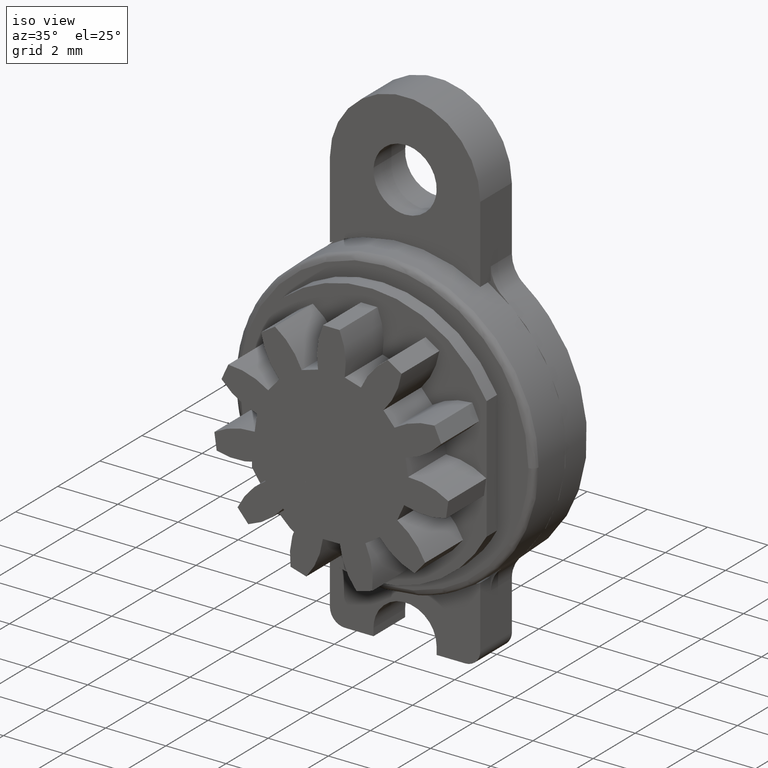
[diagram: clean part render]
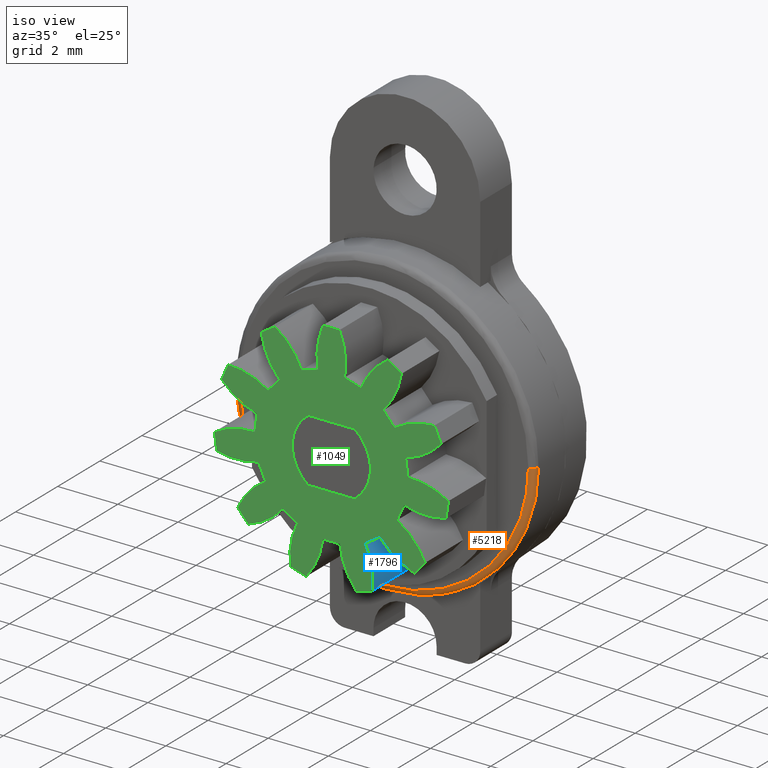
[diagram: same view with three faces highlighted in distinct colors, each labeled with its STEP entity id]
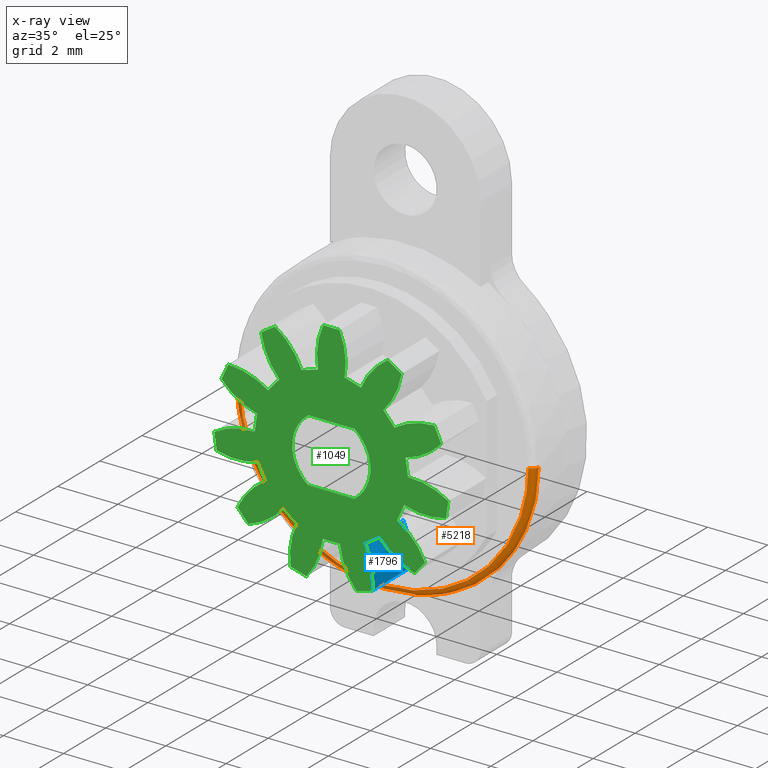
[diagram: x-ray of the same camera — body ghosted, the three highlighted faces saturated]
A machine part, iso view with three faces highlighted in distinct colors.
The next image is the same camera in x-ray (body ghosted, the three faces saturated) — at least one of them is partly hidden behind the body in this view.
Their STEP definitions:

[orange] entity #5218 — the highlighted face is a freeform B-spline surface patch.
#4931=CARTESIAN_POINT('',(-5.000000000000005,-2.300000000162677,-4.425539E-016));
#4932=VERTEX_POINT('',#4931);
#4955=CARTESIAN_POINT('',(3.686386764767185,-2.300000000086347,-3.377950949991615));
#4956=VERTEX_POINT('',#4955);
#4962=CARTESIAN_POINT('',(-7.105427E-015,-2.299999999999970,-5.0));
#4963=VERTEX_POINT('',#4962);
#4964=CARTESIAN_POINT('',(3.686386764767186,-2.300000000086342,-3.377950949991617));
#4965=CARTESIAN_POINT('',(2.200052725762777,-2.300000000035765,-5.0));
#4966=CARTESIAN_POINT('',(-7.105427E-015,-2.299999999999970,-5.0));
#4974=(BOUNDED_CURVE()B_SPLINE_CURVE(2,(#4964,#4965,#4966),.UNSPECIFIED.,.F.,.U.)B_SPLINE_CURVE_WITH_KNOTS((3,3),(0.368415205476859,0.500000000000000),.UNSPECIFIED.)CURVE()GEOMETRIC_REPRESENTATION_ITEM()RATIONAL_B_SPLINE_CURVE((0.853959781283204,0.845838823940841,1.0))REPRESENTATION_ITEM(''));
#4975=EDGE_CURVE('',#4956,#4963,#4974,.T.);
#4977=CARTESIAN_POINT('',(-7.105427E-015,-2.299999999999970,-5.0));
#4978=CARTESIAN_POINT('',(-5.000000000000007,-2.300000000081324,-5.000000000000001));
#4979=CARTESIAN_POINT('',(-5.000000000000005,-2.300000000162677,-4.425539E-016));
#4987=(BOUNDED_CURVE()B_SPLINE_CURVE(2,(#4977,#4978,#4979),.UNSPECIFIED.,.F.,.U.)B_SPLINE_CURVE_WITH_KNOTS((3,3),(0.500000000000000,0.750000000000000),.UNSPECIFIED.)CURVE()GEOMETRIC_REPRESENTATION_ITEM()RATIONAL_B_SPLINE_CURVE((1.0,0.707106781186548,1.0))REPRESENTATION_ITEM(''));
#4988=EDGE_CURVE('',#4963,#4932,#4987,.T.);
#5026=CARTESIAN_POINT('',(4.999999999999992,-2.300000000162677,6.653662E-016));
#5027=VERTEX_POINT('',#5026);
#5041=CARTESIAN_POINT('',(4.999999999999992,-2.300000000162676,6.653662E-016));
#5042=CARTESIAN_POINT('',(4.999999999999993,-2.300000000131039,-1.944393590493176));
#5043=CARTESIAN_POINT('',(3.686386764767186,-2.300000000086342,-3.377950949991617));
#5051=(BOUNDED_CURVE()B_SPLINE_CURVE(2,(#5041,#5042,#5043),.UNSPECIFIED.,.F.,.U.)B_SPLINE_CURVE_WITH_KNOTS((3,3),(0.250000000000000,0.368415205476859),.UNSPECIFIED.)CURVE()GEOMETRIC_REPRESENTATION_ITEM()RATIONAL_B_SPLINE_CURVE((1.000000000000000,0.861267957245706,0.853959781283204))REPRESENTATION_ITEM(''));
#5052=EDGE_CURVE('',#5027,#4956,#5051,.T.);
#5092=CARTESIAN_POINT('',(-4.800000000157622,-2.499999999999985,-4.426226E-016));
#5093=VERTEX_POINT('',#5092);
#5094=CARTESIAN_POINT('',(-4.800000000157622,-2.499999999999970,-8.852452E-016));
#5095=CARTESIAN_POINT('',(-4.999999999837297,-2.499999999842354,-8.742504E-016));
#5096=CARTESIAN_POINT('',(-5.000000000000005,-2.300000000162676,-8.851079E-016));
#5104=(BOUNDED_CURVE()B_SPLINE_CURVE(2,(#5094,#5095,#5096),.UNSPECIFIED.,.F.,.U.)B_SPLINE_CURVE_WITH_KNOTS((3,3),(-1.736413120256533,-0.276558718852839),.UNSPECIFIED.)CURVE()GEOMETRIC_REPRESENTATION_ITEM()RATIONAL_B_SPLINE_CURVE((0.888510408769929,0.626638727531525,0.883897566843454))REPRESENTATION_ITEM(''));
#5105=EDGE_CURVE('',#5093,#4932,#5104,.T.);
#5122=CARTESIAN_POINT('',(4.800000000157608,-2.499999999999985,2.213113E-016));
#5123=VERTEX_POINT('',#5122);
#5137=CARTESIAN_POINT('',(4.800000000157607,-2.499999999999985,2.213113E-016));
#5138=CARTESIAN_POINT('',(4.999999999837285,-2.499999999842352,4.371252E-016));
#5139=CARTESIAN_POINT('',(4.999999999999990,-2.300000000162676,4.425539E-016));
#5147=(BOUNDED_CURVE()B_SPLINE_CURVE(2,(#5137,#5138,#5139),.UNSPECIFIED.,.F.,.U.)B_SPLINE_CURVE_WITH_KNOTS((3,3),(-1.736413120256528,-0.276558718852839),.UNSPECIFIED.)CURVE()GEOMETRIC_REPRESENTATION_ITEM()RATIONAL_B_SPLINE_CURVE((0.888510408769927,0.626638727531526,0.883897566843454))REPRESENTATION_ITEM(''));
#5148=EDGE_CURVE('',#5123,#5027,#5147,.T.);
#5154=CARTESIAN_POINT('',(4.786129884907059,-2.499518470090609,0.133804577751508));
#5155=CARTESIAN_POINT('',(4.786129884907058,-2.499518470090609,0.067291911056557));
#5156=CARTESIAN_POINT('',(4.786129884907060,-2.499518470090608,-4.786129884907067));
#5157=CARTESIAN_POINT('',(-6.519315E-015,-2.499518470090608,-4.786129884907067));
#5158=CARTESIAN_POINT('',(-4.786129884907074,-2.499518470090608,-4.786129884907067));
#5159=CARTESIAN_POINT('',(-4.786129884907074,-2.499518470090608,0.067291911056557));
#5160=CARTESIAN_POINT('',(-4.786129884907074,-2.499518470090608,0.133804577751510));
#5161=CARTESIAN_POINT('',(5.015547854383984,-2.515467137096655,0.140218355745973));
#5162=CARTESIAN_POINT('',(5.015547854383984,-2.515467137096656,0.070517476172435));
#5163=CARTESIAN_POINT('',(5.015547854383986,-2.515467137096656,-5.015547854383991));
#5164=CARTESIAN_POINT('',(-6.491220E-015,-2.515467137096655,-5.015547854383992));
#5165=CARTESIAN_POINT('',(-5.015547854383998,-2.515467137096656,-5.015547854383991));
#5166=CARTESIAN_POINT('',(-5.015547854384000,-2.515467137096656,0.070517476172435));
#5167=CARTESIAN_POINT('',(-5.015547854384000,-2.515467137096656,0.140218355745975));
#5168=CARTESIAN_POINT('',(4.999513261111843,-2.286055157207239,0.139770080827868));
#5169=CARTESIAN_POINT('',(4.999513261111843,-2.286055157207239,0.070292033392936));
#5170=CARTESIAN_POINT('',(4.999513261111842,-2.286055157207238,-4.999513261111848));
#5171=CARTESIAN_POINT('',(-6.493184E-015,-2.286055157207239,-4.999513261111850));
#5172=CARTESIAN_POINT('',(-4.999513261111854,-2.286055157207238,-4.999513261111851));
#5173=CARTESIAN_POINT('',(-4.999513261111856,-2.286055157207238,0.070292033392936));
#5174=CARTESIAN_POINT('',(-4.999513261111857,-2.286055157207239,0.139770080827870));
#5182=(BOUNDED_SURFACE()B_SPLINE_SURFACE(2,2,((#5154,#5161,#5168),(#5155,#5162,#5169),(#5156,#5163,#5170),(#5157,#5164,#5171),(#5158,#5165,#5172),(#5159,#5166,#5173),(#5160,#5167,#5174)),.UNSPECIFIED.,.F.,.F.,.U.)B_SPLINE_SURFACE_WITH_KNOTS((3,1,2,1,3),(3,3),(0.0,0.165669295841330,8.449134087908005,16.732598879974681,16.898268175816010),(0.0,0.364545435399405),.UNSPECIFIED.)GEOMETRIC_REPRESENTATION_ITEM()RATIONAL_B_SPLINE_SURFACE(((0.926697838400259,0.606435486919035,0.921564728292852),(0.921332230155912,0.602924207283492,0.916228840909793),(0.647686209694202,0.423848945870745,0.644098584373797),(0.915966621911565,0.599412927647948,0.910892953526734),(0.647686209694202,0.423848945870745,0.644098584373797),(0.921332230155912,0.602924207283492,0.916228840909793),(0.926697838400259,0.606435486919036,0.921564728292852)))REPRESENTATION_ITEM('')SURFACE());
#5183=ORIENTED_EDGE('',*,*,#4988,.F.);
#5184=ORIENTED_EDGE('',*,*,#4975,.F.);
#5185=ORIENTED_EDGE('',*,*,#5052,.F.);
#5186=ORIENTED_EDGE('',*,*,#5148,.F.);
#5187=CARTESIAN_POINT('',(-7.105427E-015,-2.500000000000000,-4.800000000000000));
#5188=VERTEX_POINT('',#5187);
#5189=CARTESIAN_POINT('',(-7.105427E-015,-2.500000000000000,-4.800000000000000));
#5190=CARTESIAN_POINT('',(4.800000000078800,-2.499999999999992,-4.800000000000001));
#5191=CARTESIAN_POINT('',(4.800000000157608,-2.499999999999985,2.213113E-016));
#5199=(BOUNDED_CURVE()B_SPLINE_CURVE(2,(#5189,#5190,#5191),.UNSPECIFIED.,.F.,.U.)B_SPLINE_CURVE_WITH_KNOTS((3,3),(0.500000000000000,0.750000000000000),.UNSPECIFIED.)CURVE()GEOMETRIC_REPRESENTATION_ITEM()RATIONAL_B_SPLINE_CURVE((1.0,0.707106781186547,1.0))REPRESENTATION_ITEM(''));
#5200=EDGE_CURVE('',#5188,#5123,#5199,.T.);
#5201=ORIENTED_EDGE('',*,*,#5200,.F.);
#5202=CARTESIAN_POINT('',(-4.800000000157622,-2.499999999999985,-4.426226E-016));
#5203=CARTESIAN_POINT('',(-4.800000000078815,-2.499999999999992,-4.800000000000001));
#5204=CARTESIAN_POINT('',(-7.105427E-015,-2.500000000000000,-4.800000000000000));
#5212=(BOUNDED_CURVE()B_SPLINE_CURVE(2,(#5202,#5203,#5204),.UNSPECIFIED.,.F.,.U.)B_SPLINE_CURVE_WITH_KNOTS((3,3),(0.250000000000000,0.500000000000000),.UNSPECIFIED.)CURVE()GEOMETRIC_REPRESENTATION_ITEM()RATIONAL_B_SPLINE_CURVE((1.0,0.707106781186547,1.0))REPRESENTATION_ITEM(''));
#5213=EDGE_CURVE('',#5093,#5188,#5212,.T.);
#5214=ORIENTED_EDGE('',*,*,#5213,.F.);
#5215=ORIENTED_EDGE('',*,*,#5105,.T.);
#5216=EDGE_LOOP('',(#5183,#5184,#5185,#5186,#5201,#5214,#5215));
#5217=FACE_OUTER_BOUND('',#5216,.T.);
#5218=ADVANCED_FACE('',(#5217),#5182,.T.);

[blue] entity #1796 — the highlighted face is a freeform B-spline surface patch.
#743=CARTESIAN_POINT('',(1.357110745523926,-5.0,-3.656261810153030));
#744=VERTEX_POINT('',#743);
#758=CARTESIAN_POINT('',(1.132369855619404,-5.0,-2.284784127676945));
#759=VERTEX_POINT('',#758);
#760=CARTESIAN_POINT('',(1.357110745523927,-5.0,-3.656261810153030));
#761=CARTESIAN_POINT('',(1.455143386383690,-5.000000000000001,-2.936044699710723));
#762=CARTESIAN_POINT('',(1.132369855619403,-5.0,-2.284784127676945));
#770=(BOUNDED_CURVE()B_SPLINE_CURVE(2,(#760,#761,#762),.UNSPECIFIED.,.F.,.U.)CURVE()GEOMETRIC_REPRESENTATION_ITEM()QUASI_UNIFORM_CURVE()RATIONAL_B_SPLINE_CURVE((1.0,0.956011273868736,1.0))REPRESENTATION_ITEM(''));
#771=EDGE_CURVE('',#744,#759,#770,.T.);
#1733=CARTESIAN_POINT('',(1.132369855619404,-3.200000000000090,-2.284784127676945));
#1734=VERTEX_POINT('',#1733);
#1750=CARTESIAN_POINT('',(1.132369855619404,-5.0,-2.284784127676945));
#1751=CARTESIAN_POINT('',(1.132369855619404,-3.200000000000090,-2.284784127676945));
#1752=QUASI_UNIFORM_CURVE('',1,(#1750,#1751),.UNSPECIFIED.,.F.,.U.);
#1753=EDGE_CURVE('',#759,#1734,#1752,.T.);
#1758=CARTESIAN_POINT('',(1.347942721848038,-5.044999999999998,-3.717597684052098));
#1759=CARTESIAN_POINT('',(1.347942721848038,-3.153875000000092,-3.717597684052098));
#1760=CARTESIAN_POINT('',(1.476458939186688,-5.044999999999998,-2.928582881464664));
#1761=CARTESIAN_POINT('',(1.476458939186688,-3.153875000000092,-2.928582881464664));
#1762=CARTESIAN_POINT('',(1.100625934112477,-5.044999999999999,-2.223026130297182));
#1763=CARTESIAN_POINT('',(1.100625934112477,-3.153875000000094,-2.223026130297182));
#1771=(BOUNDED_SURFACE()B_SPLINE_SURFACE(1,2,((#1758,#1760,#1762),(#1759,#1761,#1763)),.UNSPECIFIED.,.F.,.F.,.U.)B_SPLINE_SURFACE_WITH_KNOTS((2,2),(3,3),(0.0,1.0),(0.0,0.955520018516667),.UNSPECIFIED.)GEOMETRIC_REPRESENTATION_ITEM()RATIONAL_B_SPLINE_SURFACE(((1.0,0.945192796506310,0.995124353206895),(1.0,0.945192796506310,0.995124353206895)))REPRESENTATION_ITEM('')SURFACE());
#1772=CARTESIAN_POINT('',(1.357110745523926,-3.200000000000090,-3.656261810153030));
#1773=VERTEX_POINT('',#1772);
#1774=CARTESIAN_POINT('',(1.357110745523927,-3.200000000000090,-3.656261810153030));
#1775=CARTESIAN_POINT('',(1.455143386383690,-3.200000000000090,-2.936044699710723));
#1776=CARTESIAN_POINT('',(1.132369855619403,-3.200000000000090,-2.284784127676945));
#1784=(BOUNDED_CURVE()B_SPLINE_CURVE(2,(#1774,#1775,#1776),.UNSPECIFIED.,.F.,.U.)CURVE()GEOMETRIC_REPRESENTATION_ITEM()QUASI_UNIFORM_CURVE()RATIONAL_B_SPLINE_CURVE((1.0,0.956011273868736,1.0))REPRESENTATION_ITEM(''));
#1785=EDGE_CURVE('',#1773,#1734,#1784,.T.);
#1786=ORIENTED_EDGE('',*,*,#1785,.T.);
#1787=ORIENTED_EDGE('',*,*,#1753,.F.);
#1788=ORIENTED_EDGE('',*,*,#771,.F.);
#1789=CARTESIAN_POINT('',(1.357110745523926,-5.0,-3.656261810153030));
#1790=CARTESIAN_POINT('',(1.357110745523926,-3.200000000000090,-3.656261810153030));
#1791=QUASI_UNIFORM_CURVE('',1,(#1789,#1790),.UNSPECIFIED.,.F.,.U.);
#1792=EDGE_CURVE('',#744,#1773,#1791,.T.);
#1793=ORIENTED_EDGE('',*,*,#1792,.T.);
#1794=EDGE_LOOP('',(#1786,#1787,#1788,#1793));
#1795=FACE_OUTER_BOUND('',#1794,.T.);
#1796=ADVANCED_FACE('',(#1795),#1771,.T.);

[green] entity #1049 — the highlighted face is a freeform B-spline surface patch.
#255=CARTESIAN_POINT('',(-0.766485485837795,-5.0,-1.050000000000026));
#256=VERTEX_POINT('',#255);
#257=CARTESIAN_POINT('',(0.766485485837798,-5.0,-1.050000000000026));
#258=VERTEX_POINT('',#257);
#259=CARTESIAN_POINT('',(-0.766485485837795,-5.0,-1.050000000000026));
#260=CARTESIAN_POINT('',(0.766485485837798,-5.0,-1.050000000000026));
#261=QUASI_UNIFORM_CURVE('',1,(#259,#260),.UNSPECIFIED.,.F.,.U.);
#262=EDGE_CURVE('',#256,#258,#261,.T.);
#292=CARTESIAN_POINT('',(-0.766485485837798,-5.0,1.049999999999970));
#293=VERTEX_POINT('',#292);
#294=CARTESIAN_POINT('',(-0.766485485837798,-5.0,1.049999999999970));
#295=CARTESIAN_POINT('',(-0.859061627983366,-4.999999999999991,0.982464951849980));
#296=CARTESIAN_POINT('',(-1.002937130798695,-5.000000000000015,0.844872364359344));
#297=CARTESIAN_POINT('',(-1.139673454736569,-4.999999999999988,0.636281707336016));
#298=CARTESIAN_POINT('',(-1.224004276888058,-5.000000000000019,0.450450332518622));
#299=CARTESIAN_POINT('',(-1.287191102593653,-4.999999999999996,0.236022747463944));
#300=CARTESIAN_POINT('',(-1.312606643155473,-4.999999999999989,-0.051315405970564));
#301=CARTESIAN_POINT('',(-1.266104815248107,-5.000000000000015,-0.336534419304740));
#302=CARTESIAN_POINT('',(-1.167913272175169,-4.999999999999971,-0.586175603785272));
#303=CARTESIAN_POINT('',(-1.020634345932201,-5.000000000000036,-0.825947782834402));
#304=CARTESIAN_POINT('',(-0.869358624318706,-4.999999999999997,-0.974970198910762));
#305=CARTESIAN_POINT('',(-0.766485485837795,-5.0,-1.050000000000026));
#306=B_SPLINE_CURVE_WITH_KNOTS('',3,(#294,#295,#296,#297,#298,#299,#300,#301,#302,#303,#304,#305),.UNSPECIFIED.,.F.,.U.,(4,1,1,1,1,1,1,1,1,4),(9.535218E-009,0.343769626835391,0.592054721718542,0.744845264380893,0.954931006051217,1.260500953949453,1.604274112916795,1.814361406707968,2.062646453574359,2.444613708668184),.UNSPECIFIED.);
#307=EDGE_CURVE('',#293,#256,#306,.T.);
#324=CARTESIAN_POINT('',(0.766485485837798,-5.0,1.049999999999970));
#325=VERTEX_POINT('',#324);
#326=CARTESIAN_POINT('',(0.766485485837798,-5.0,1.049999999999970));
#327=CARTESIAN_POINT('',(-0.766485485837798,-5.0,1.049999999999970));
#328=QUASI_UNIFORM_CURVE('',1,(#326,#327),.UNSPECIFIED.,.F.,.U.);
#329=EDGE_CURVE('',#325,#293,#328,.T.);
#355=CARTESIAN_POINT('',(0.766485485837798,-5.0,-1.050000000000026));
#356=CARTESIAN_POINT('',(0.869361388065699,-5.000000000000011,-0.974971079008481));
#357=CARTESIAN_POINT('',(1.011458243910991,-4.999999999999985,-0.834976094808754));
#358=CARTESIAN_POINT('',(1.165486809425825,-5.000000000000020,-0.592313433878270));
#359=CARTESIAN_POINT('',(1.246596635257172,-4.999999999999991,-0.390400606104878));
#360=CARTESIAN_POINT('',(1.293798130401958,-5.000000000000002,-0.172143254948819));
#361=CARTESIAN_POINT('',(1.306942718745986,-4.999999999999997,0.051150375652212));
#362=CARTESIAN_POINT('',(1.272359674589726,-5.000000000000006,0.311253315251293));
#363=CARTESIAN_POINT('',(1.172663464323494,-4.999999999999965,0.588503509884419));
#364=CARTESIAN_POINT('',(1.003808924375306,-5.000000000000111,0.846047438302722));
#365=CARTESIAN_POINT('',(0.848765788580291,-4.999999999999892,0.989957592228890));
#366=CARTESIAN_POINT('',(0.766485485837798,-5.0,1.049999999999970));
#367=B_SPLINE_CURVE_WITH_KNOTS('',3,(#355,#356,#357,#358,#359,#360,#361,#362,#363,#364,#365,#366),.UNSPECIFIED.,.F.,.U.,(4,1,1,1,1,1,1,1,1,4),(9.535776E-009,0.381967863496254,0.592054721718982,0.859436871902846,1.031328049701592,1.260500953949755,1.527882629339873,1.814361406708150,2.139037937150719,2.444613708668199),.UNSPECIFIED.);
#368=EDGE_CURVE('',#258,#325,#367,.T.);
#376=CARTESIAN_POINT('',(-4.278189618792946,-5.0,-4.194642650514925));
#377=CARTESIAN_POINT('',(4.278189825959179,-5.0,-4.194642650514925));
#378=CARTESIAN_POINT('',(-4.278189618792946,-5.0,4.285047764823158));
#379=CARTESIAN_POINT('',(4.278189825959179,-5.0,4.285047764823158));
#380=B_SPLINE_SURFACE_WITH_KNOTS('',1,1,((#376,#378),(#377,#379)),.UNSPECIFIED.,.F.,.F.,.U.,(2,2),(2,2),(0.0,8.556379444752125),(0.0,8.479690415338084),.UNSPECIFIED.);
#381=CARTESIAN_POINT('',(0.272050247602097,-5.0,3.890499796013320));
#382=VERTEX_POINT('',#381);
#383=CARTESIAN_POINT('',(-0.272050247602082,-5.0,3.890499796013320));
#384=VERTEX_POINT('',#383);
#385=CARTESIAN_POINT('',(0.272050247602097,-5.0,3.890499796013314));
#386=CARTESIAN_POINT('',(8.135419E-015,-5.0,3.909523402516572));
#387=CARTESIAN_POINT('',(-0.272050247602082,-5.0,3.890499796013314));
#395=(BOUNDED_CURVE()B_SPLINE_CURVE(2,(#385,#386,#387),.UNSPECIFIED.,.F.,.U.)CURVE()GEOMETRIC_REPRESENTATION_ITEM()QUASI_UNIFORM_CURVE()RATIONAL_B_SPLINE_CURVE((1.0,0.997564050259824,1.0))REPRESENTATION_ITEM(''));
#396=EDGE_CURVE('',#382,#384,#395,.T.);
#397=ORIENTED_EDGE('',*,*,#396,.T.);
#398=CARTESIAN_POINT('',(-0.442802853050668,-5.0,2.511259770181130));
#399=VERTEX_POINT('',#398);
#400=CARTESIAN_POINT('',(-0.272050247602082,-5.0,3.890499796013319));
#401=CARTESIAN_POINT('',(-0.569020483803022,-5.0,3.227075524782181));
#402=CARTESIAN_POINT('',(-0.442802853050668,-5.0,2.511259770181130));
#410=(BOUNDED_CURVE()B_SPLINE_CURVE(2,(#400,#401,#402),.UNSPECIFIED.,.F.,.U.)CURVE()GEOMETRIC_REPRESENTATION_ITEM()QUASI_UNIFORM_CURVE()RATIONAL_B_SPLINE_CURVE((1.0,0.956011273868735,1.0))REPRESENTATION_ITEM(''));
#411=EDGE_CURVE('',#384,#399,#410,.T.);
#412=ORIENTED_EDGE('',*,*,#411,.T.);
#413=CARTESIAN_POINT('',(-0.985180069397917,-5.0,2.352003450435630));
#414=VERTEX_POINT('',#413);
#415=CARTESIAN_POINT('',(-0.442802853050667,-5.0,2.511259770181130));
#416=CARTESIAN_POINT('',(-0.722872020991560,-5.0,2.461876019408581));
#417=CARTESIAN_POINT('',(-0.985180069397916,-5.0,2.352003450435629));
#425=(BOUNDED_CURVE()B_SPLINE_CURVE(2,(#415,#416,#417),.UNSPECIFIED.,.F.,.U.)CURVE()GEOMETRIC_REPRESENTATION_ITEM()QUASI_UNIFORM_CURVE()RATIONAL_B_SPLINE_CURVE((1.0,0.993838464487634,1.0))REPRESENTATION_ITEM(''));
#426=EDGE_CURVE('',#399,#414,#425,.T.);
#427=ORIENTED_EDGE('',*,*,#426,.T.);
#428=CARTESIAN_POINT('',(-1.874499756496710,-5.0,3.419978167020045));
#429=VERTEX_POINT('',#428);
#430=CARTESIAN_POINT('',(-0.985180069397921,-5.0,2.352003450435628));
#431=CARTESIAN_POINT('',(-1.265998256017910,-5.000000000000002,3.022424386050909));
#432=CARTESIAN_POINT('',(-1.874499756496711,-5.0,3.419978167020042));
#440=(BOUNDED_CURVE()B_SPLINE_CURVE(2,(#430,#431,#432),.UNSPECIFIED.,.F.,.U.)CURVE()GEOMETRIC_REPRESENTATION_ITEM()QUASI_UNIFORM_CURVE()RATIONAL_B_SPLINE_CURVE((1.0,0.956011273868735,1.0))REPRESENTATION_ITEM(''));
#441=EDGE_CURVE('',#414,#429,#440,.T.);
#442=ORIENTED_EDGE('',*,*,#441,.T.);
#443=CARTESIAN_POINT('',(-2.332226220442440,-5.0,3.125815230732735));
#444=VERTEX_POINT('',#443);
#445=CARTESIAN_POINT('',(-1.874499756496706,-5.0,3.419978167020041));
#446=CARTESIAN_POINT('',(-2.113647926632828,-5.0,3.288900375059340));
#447=CARTESIAN_POINT('',(-2.332226220442439,-5.0,3.125815230732735));
#455=(BOUNDED_CURVE()B_SPLINE_CURVE(2,(#445,#446,#447),.UNSPECIFIED.,.F.,.U.)CURVE()GEOMETRIC_REPRESENTATION_ITEM()QUASI_UNIFORM_CURVE()RATIONAL_B_SPLINE_CURVE((1.0,0.997564050259824,1.0))REPRESENTATION_ITEM(''));
#456=EDGE_CURVE('',#429,#444,#455,.T.);
#457=ORIENTED_EDGE('',*,*,#456,.T.);
#458=CARTESIAN_POINT('',(-1.730198998579035,-5.0,1.873208857900280));
#459=VERTEX_POINT('',#458);
#460=CARTESIAN_POINT('',(-2.332226220442437,-5.0,3.125815230732736));
#461=CARTESIAN_POINT('',(-2.223379240815983,-5.000000000000001,2.407152987482124));
#462=CARTESIAN_POINT('',(-1.730198998579035,-5.0,1.873208857900282));
#470=(BOUNDED_CURVE()B_SPLINE_CURVE(2,(#460,#461,#462),.UNSPECIFIED.,.F.,.U.)CURVE()GEOMETRIC_REPRESENTATION_ITEM()QUASI_UNIFORM_CURVE()RATIONAL_B_SPLINE_CURVE((1.0,0.956011273868736,1.0))REPRESENTATION_ITEM(''));
#471=EDGE_CURVE('',#444,#459,#470,.T.);
#472=ORIENTED_EDGE('',*,*,#471,.T.);
#473=CARTESIAN_POINT('',(-2.100375281269475,-5.0,1.446002654849620));
#474=VERTEX_POINT('',#473);
#475=CARTESIAN_POINT('',(-1.730198998579036,-5.0,1.873208857900282));
#476=CARTESIAN_POINT('',(-1.939109304251554,-5.0,1.680247779298189));
#477=CARTESIAN_POINT('',(-2.100375281269475,-5.0,1.446002654849619));
#485=(BOUNDED_CURVE()B_SPLINE_CURVE(2,(#475,#476,#477),.UNSPECIFIED.,.F.,.U.)CURVE()GEOMETRIC_REPRESENTATION_ITEM()QUASI_UNIFORM_CURVE()RATIONAL_B_SPLINE_CURVE((1.0,0.993838464487633,1.0))REPRESENTATION_ITEM(''));
#486=EDGE_CURVE('',#459,#474,#485,.T.);
#487=ORIENTED_EDGE('',*,*,#486,.T.);
#488=CARTESIAN_POINT('',(-3.425909333454970,-5.0,1.863637636169145));
#489=VERTEX_POINT('',#488);
#490=CARTESIAN_POINT('',(-2.100375281269475,-5.0,1.446002654849619));
#491=CARTESIAN_POINT('',(-2.699071495320986,-5.0,1.858174861734311));
#492=CARTESIAN_POINT('',(-3.425909333454970,-5.0,1.863637636169146));
#500=(BOUNDED_CURVE()B_SPLINE_CURVE(2,(#490,#491,#492),.UNSPECIFIED.,.F.,.U.)CURVE()GEOMETRIC_REPRESENTATION_ITEM()QUASI_UNIFORM_CURVE()RATIONAL_B_SPLINE_CURVE((1.0,0.956011273868735,1.0))REPRESENTATION_ITEM(''));
#501=EDGE_CURVE('',#474,#489,#500,.T.);
#502=ORIENTED_EDGE('',*,*,#501,.T.);
#503=CARTESIAN_POINT('',(-3.651936848215715,-5.0,1.368706417258362));
#504=VERTEX_POINT('',#503);
#505=CARTESIAN_POINT('',(-3.425909333454964,-5.0,1.863637636169144));
#506=CARTESIAN_POINT('',(-3.556227571970211,-5.0,1.624074718473123));
#507=CARTESIAN_POINT('',(-3.651936848215714,-5.0,1.368706417258363));
#515=(BOUNDED_CURVE()B_SPLINE_CURVE(2,(#505,#506,#507),.UNSPECIFIED.,.F.,.U.)CURVE()GEOMETRIC_REPRESENTATION_ITEM()QUASI_UNIFORM_CURVE()RATIONAL_B_SPLINE_CURVE((1.0,0.997564050259824,1.0))REPRESENTATION_ITEM(''));
#516=EDGE_CURVE('',#489,#504,#515,.T.);
#517=ORIENTED_EDGE('',*,*,#516,.T.);
#518=CARTESIAN_POINT('',(-2.468269187951015,-5.0,0.640427369661539));
#519=VERTEX_POINT('',#518);
#520=CARTESIAN_POINT('',(-3.651936848215715,-5.0,1.368706417258364));
#521=CARTESIAN_POINT('',(-3.171830799661239,-5.000000000000002,0.822976386025692));
#522=CARTESIAN_POINT('',(-2.468269187951016,-5.0,0.640427369661537));
#530=(BOUNDED_CURVE()B_SPLINE_CURVE(2,(#520,#521,#522),.UNSPECIFIED.,.F.,.U.)CURVE()GEOMETRIC_REPRESENTATION_ITEM()QUASI_UNIFORM_CURVE()RATIONAL_B_SPLINE_CURVE((1.0,0.956011273868735,1.0))REPRESENTATION_ITEM(''));
#531=EDGE_CURVE('',#504,#519,#530,.T.);
#532=ORIENTED_EDGE('',*,*,#531,.T.);
#533=CARTESIAN_POINT('',(-2.548716182961580,-5.0,0.080906234059634));
#534=VERTEX_POINT('',#533);
#535=CARTESIAN_POINT('',(-2.468269187951016,-5.0,0.640427369661541));
#536=CARTESIAN_POINT('',(-2.539693085501345,-5.0,0.365152742188922));
#537=CARTESIAN_POINT('',(-2.548716182961581,-5.0,0.080906234059635));
#545=(BOUNDED_CURVE()B_SPLINE_CURVE(2,(#535,#536,#537),.UNSPECIFIED.,.F.,.U.)CURVE()GEOMETRIC_REPRESENTATION_ITEM()QUASI_UNIFORM_CURVE()RATIONAL_B_SPLINE_CURVE((1.0,0.993838464487633,1.0))REPRESENTATION_ITEM(''));
#546=EDGE_CURVE('',#519,#534,#545,.T.);
#547=ORIENTED_EDGE('',*,*,#546,.T.);
#548=CARTESIAN_POINT('',(-3.889616905123185,-5.0,-0.284394675371960));
#549=VERTEX_POINT('',#548);
#550=CARTESIAN_POINT('',(-2.548716182961580,-5.0,0.080906234059630));
#551=CARTESIAN_POINT('',(-3.275208606976707,-5.0,0.103967949009631));
#552=CARTESIAN_POINT('',(-3.889616905123182,-5.0,-0.284394675371964));
#560=(BOUNDED_CURVE()B_SPLINE_CURVE(2,(#550,#551,#552),.UNSPECIFIED.,.F.,.U.)CURVE()GEOMETRIC_REPRESENTATION_ITEM()QUASI_UNIFORM_CURVE()RATIONAL_B_SPLINE_CURVE((1.0,0.956011273868735,1.0))REPRESENTATION_ITEM(''));
#561=EDGE_CURVE('',#534,#549,#560,.T.);
#562=ORIENTED_EDGE('',*,*,#561,.T.);
#563=CARTESIAN_POINT('',(-3.812183331912850,-5.0,-0.822957012173662));
#564=VERTEX_POINT('',#563);
#565=CARTESIAN_POINT('',(-3.889616905123180,-5.0,-0.284394675371959));
#566=CARTESIAN_POINT('',(-3.869730092140709,-5.0,-0.556383185228808));
#567=CARTESIAN_POINT('',(-3.812183331912849,-5.0,-0.822957012173660));
#575=(BOUNDED_CURVE()B_SPLINE_CURVE(2,(#565,#566,#567),.UNSPECIFIED.,.F.,.U.)CURVE()GEOMETRIC_REPRESENTATION_ITEM()QUASI_UNIFORM_CURVE()RATIONAL_B_SPLINE_CURVE((1.0,0.997564050259824,1.0))REPRESENTATION_ITEM(''));
#576=EDGE_CURVE('',#549,#564,#575,.T.);
#577=ORIENTED_EDGE('',*,*,#576,.T.);
#578=CARTESIAN_POINT('',(-2.422681351375640,-5.0,-0.795685283071563));
#579=VERTEX_POINT('',#578);
#580=CARTESIAN_POINT('',(-3.812183331912851,-5.0,-0.822957012173661));
#581=CARTESIAN_POINT('',(-3.113248492332056,-5.000000000000002,-1.022489402697042));
#582=CARTESIAN_POINT('',(-2.422681351375641,-5.0,-0.795685283071563));
#590=(BOUNDED_CURVE()B_SPLINE_CURVE(2,(#580,#581,#582),.UNSPECIFIED.,.F.,.U.)CURVE()GEOMETRIC_REPRESENTATION_ITEM()QUASI_UNIFORM_CURVE()RATIONAL_B_SPLINE_CURVE((1.0,0.956011273868735,1.0))REPRESENTATION_ITEM(''));
#591=EDGE_CURVE('',#564,#579,#590,.T.);
#592=ORIENTED_EDGE('',*,*,#591,.T.);
#593=CARTESIAN_POINT('',(-2.187857706243190,-5.0,-1.309877344346510));
#594=VERTEX_POINT('',#593);
#595=CARTESIAN_POINT('',(-2.422681351375640,-5.0,-0.795685283071561));
#596=CARTESIAN_POINT('',(-2.333942258025456,-5.0,-1.065875710331404));
#597=CARTESIAN_POINT('',(-2.187857706243189,-5.0,-1.309877344346509));
#605=(BOUNDED_CURVE()B_SPLINE_CURVE(2,(#595,#596,#597),.UNSPECIFIED.,.F.,.U.)CURVE()GEOMETRIC_REPRESENTATION_ITEM()QUASI_UNIFORM_CURVE()RATIONAL_B_SPLINE_CURVE((1.0,0.993838464487634,1.0))REPRESENTATION_ITEM(''));
#606=EDGE_CURVE('',#579,#594,#605,.T.);
#607=ORIENTED_EDGE('',*,*,#606,.T.);
#608=CARTESIAN_POINT('',(-3.118398594136500,-5.0,-2.342133687065595));
#609=VERTEX_POINT('',#608);
#610=CARTESIAN_POINT('',(-2.187857706243185,-5.0,-1.309877344346515));
#611=CARTESIAN_POINT('',(-2.811490129121217,-5.000000000000002,-1.683248052869668));
#612=CARTESIAN_POINT('',(-3.118398594136496,-5.0,-2.342133687065596));
#620=(BOUNDED_CURVE()B_SPLINE_CURVE(2,(#610,#611,#612),.UNSPECIFIED.,.F.,.U.)CURVE()GEOMETRIC_REPRESENTATION_ITEM()QUASI_UNIFORM_CURVE()RATIONAL_B_SPLINE_CURVE((1.0,0.956011273868735,1.0))REPRESENTATION_ITEM(''));
#621=EDGE_CURVE('',#594,#609,#620,.T.);
#622=ORIENTED_EDGE('',*,*,#621,.T.);
#623=CARTESIAN_POINT('',(-2.762088545290025,-5.0,-2.753337405400505));
#624=VERTEX_POINT('',#623);
#625=CARTESIAN_POINT('',(-3.118398594136497,-5.0,-2.342133687065594));
#626=CARTESIAN_POINT('',(-2.954620652254501,-5.0,-2.560193359122683));
#627=CARTESIAN_POINT('',(-2.762088545290026,-5.0,-2.753337405400505));
#635=(BOUNDED_CURVE()B_SPLINE_CURVE(2,(#625,#626,#627),.UNSPECIFIED.,.F.,.U.)CURVE()GEOMETRIC_REPRESENTATION_ITEM()QUASI_UNIFORM_CURVE()RATIONAL_B_SPLINE_CURVE((1.0,0.997564050259824,1.0))REPRESENTATION_ITEM(''));
#636=EDGE_CURVE('',#609,#624,#635,.T.);
#637=ORIENTED_EDGE('',*,*,#636,.T.);
#638=CARTESIAN_POINT('',(-1.607909304833865,-5.0,-1.979173480882530));
#639=VERTEX_POINT('',#638);
#640=CARTESIAN_POINT('',(-2.762088545290025,-5.0,-2.753337405400504));
#641=CARTESIAN_POINT('',(-2.066231787452495,-5.0,-2.543322031154616));
#642=CARTESIAN_POINT('',(-1.607909304833866,-5.0,-1.979173480882529));
#650=(BOUNDED_CURVE()B_SPLINE_CURVE(2,(#640,#641,#642),.UNSPECIFIED.,.F.,.U.)CURVE()GEOMETRIC_REPRESENTATION_ITEM()QUASI_UNIFORM_CURVE()RATIONAL_B_SPLINE_CURVE((1.0,0.956011273868736,1.0))REPRESENTATION_ITEM(''));
#651=EDGE_CURVE('',#624,#639,#650,.T.);
#652=ORIENTED_EDGE('',*,*,#651,.T.);
#653=CARTESIAN_POINT('',(-1.132369867582494,-5.0,-2.284784121747870));
#654=VERTEX_POINT('',#653);
#655=CARTESIAN_POINT('',(-1.607909304833864,-5.0,-1.979173480882527));
#656=CARTESIAN_POINT('',(-1.387181255675706,-5.0,-2.158496156487989));
#657=CARTESIAN_POINT('',(-1.132369867582495,-5.0,-2.284784121747870));
#665=(BOUNDED_CURVE()B_SPLINE_CURVE(2,(#655,#656,#657),.UNSPECIFIED.,.F.,.U.)CURVE()GEOMETRIC_REPRESENTATION_ITEM()QUASI_UNIFORM_CURVE()RATIONAL_B_SPLINE_CURVE((1.0,0.993838464487633,1.0))REPRESENTATION_ITEM(''));
#666=EDGE_CURVE('',#639,#654,#665,.T.);
#667=ORIENTED_EDGE('',*,*,#666,.T.);
#668=CARTESIAN_POINT('',(-1.357110764668054,-5.0,-3.656261803047215));
#669=VERTEX_POINT('',#668);
#670=CARTESIAN_POINT('',(-1.132369867582487,-5.0,-2.284784121747872));
#671=CARTESIAN_POINT('',(-1.455143401756768,-5.000000000000001,-2.936044692091610));
#672=CARTESIAN_POINT('',(-1.357110764668054,-5.0,-3.656261803047215));
#680=(BOUNDED_CURVE()B_SPLINE_CURVE(2,(#670,#671,#672),.UNSPECIFIED.,.F.,.U.)CURVE()GEOMETRIC_REPRESENTATION_ITEM()QUASI_UNIFORM_CURVE()RATIONAL_B_SPLINE_CURVE((1.0,0.956011273868736,1.0))REPRESENTATION_ITEM(''));
#681=EDGE_CURVE('',#654,#669,#680,.T.);
#682=ORIENTED_EDGE('',*,*,#681,.T.);
#683=CARTESIAN_POINT('',(-0.835050162944309,-5.0,-3.809552627982275));
#684=VERTEX_POINT('',#683);
#685=CARTESIAN_POINT('',(-1.357110764668055,-5.0,-3.656261803047214));
#686=CARTESIAN_POINT('',(-1.101440033150133,-5.0,-3.751160232274671));
#687=CARTESIAN_POINT('',(-0.835050162944312,-5.0,-3.809552627982276));
#695=(BOUNDED_CURVE()B_SPLINE_CURVE(2,(#685,#686,#687),.UNSPECIFIED.,.F.,.U.)CURVE()GEOMETRIC_REPRESENTATION_ITEM()QUASI_UNIFORM_CURVE()RATIONAL_B_SPLINE_CURVE((1.0,0.997564050259825,1.0))REPRESENTATION_ITEM(''));
#696=EDGE_CURVE('',#669,#684,#695,.T.);
#697=ORIENTED_EDGE('',*,*,#696,.T.);
#698=CARTESIAN_POINT('',(-0.282637415779163,-5.0,-2.534288083703520));
#699=VERTEX_POINT('',#698);
#700=CARTESIAN_POINT('',(-0.835050162944312,-5.0,-3.809552627982272));
#701=CARTESIAN_POINT('',(-0.363201090416403,-5.0,-3.256667886284371));
#702=CARTESIAN_POINT('',(-0.282637415779165,-5.0,-2.534288083703520));
#710=(BOUNDED_CURVE()B_SPLINE_CURVE(2,(#700,#701,#702),.UNSPECIFIED.,.F.,.U.)CURVE()GEOMETRIC_REPRESENTATION_ITEM()QUASI_UNIFORM_CURVE()RATIONAL_B_SPLINE_CURVE((1.0,0.956011273868736,1.0))REPRESENTATION_ITEM(''));
#711=EDGE_CURVE('',#684,#699,#710,.T.);
#712=ORIENTED_EDGE('',*,*,#711,.T.);
#713=CARTESIAN_POINT('',(0.282637402509670,-5.0,-2.534288085183410));
#714=VERTEX_POINT('',#713);
#715=CARTESIAN_POINT('',(-0.282637415779164,-5.0,-2.534288083703523));
#716=CARTESIAN_POINT('',(-6.717271E-009,-5.0,-2.565809325275646));
#717=CARTESIAN_POINT('',(0.282637402509670,-5.0,-2.534288085183409));
#725=(BOUNDED_CURVE()B_SPLINE_CURVE(2,(#715,#716,#717),.UNSPECIFIED.,.F.,.U.)CURVE()GEOMETRIC_REPRESENTATION_ITEM()QUASI_UNIFORM_CURVE()RATIONAL_B_SPLINE_CURVE((1.0,0.993838464487634,1.0))REPRESENTATION_ITEM(''));
#726=EDGE_CURVE('',#699,#714,#725,.T.);
#727=ORIENTED_EDGE('',*,*,#726,.T.);
#728=CARTESIAN_POINT('',(0.835050142997552,-5.0,-3.809552632354590));
#729=VERTEX_POINT('',#728);
#730=CARTESIAN_POINT('',(0.282637402509674,-5.0,-2.534288085183409));
#731=CARTESIAN_POINT('',(0.363201073364541,-5.0,-3.256667888186091));
#732=CARTESIAN_POINT('',(0.835050142997554,-5.0,-3.809552632354589));
#740=(BOUNDED_CURVE()B_SPLINE_CURVE(2,(#730,#731,#732),.UNSPECIFIED.,.F.,.U.)CURVE()GEOMETRIC_REPRESENTATION_ITEM()QUASI_UNIFORM_CURVE()RATIONAL_B_SPLINE_CURVE((1.0,0.956011273868736,1.0))REPRESENTATION_ITEM(''));
#741=EDGE_CURVE('',#714,#729,#740,.T.);
#742=ORIENTED_EDGE('',*,*,#741,.T.);
#743=CARTESIAN_POINT('',(1.357110745523926,-5.0,-3.656261810153030));
#744=VERTEX_POINT('',#743);
#745=CARTESIAN_POINT('',(0.835050142997552,-5.0,-3.809552632354589));
#746=CARTESIAN_POINT('',(1.101440013509115,-5.0,-3.751160238041799));
#747=CARTESIAN_POINT('',(1.357110745523926,-5.0,-3.656261810153030));
#755=(BOUNDED_CURVE()B_SPLINE_CURVE(2,(#745,#746,#747),.UNSPECIFIED.,.F.,.U.)CURVE()GEOMETRIC_REPRESENTATION_ITEM()QUASI_UNIFORM_CURVE()RATIONAL_B_SPLINE_CURVE((1.0,0.997564050259824,1.0))REPRESENTATION_ITEM(''));
#756=EDGE_CURVE('',#729,#744,#755,.T.);
#757=ORIENTED_EDGE('',*,*,#756,.T.);
#758=CARTESIAN_POINT('',(1.132369855619404,-5.0,-2.284784127676945));
#759=VERTEX_POINT('',#758);
#760=CARTESIAN_POINT('',(1.357110745523927,-5.0,-3.656261810153030));
#761=CARTESIAN_POINT('',(1.455143386383690,-5.000000000000001,-2.936044699710723));
#762=CARTESIAN_POINT('',(1.132369855619403,-5.0,-2.284784127676945));
#770=(BOUNDED_CURVE()B_SPLINE_CURVE(2,(#760,#761,#762),.UNSPECIFIED.,.F.,.U.)CURVE()GEOMETRIC_REPRESENTATION_ITEM()QUASI_UNIFORM_CURVE()RATIONAL_B_SPLINE_CURVE((1.0,0.956011273868736,1.0))REPRESENTATION_ITEM(''));
#771=EDGE_CURVE('',#744,#759,#770,.T.);
#772=ORIENTED_EDGE('',*,*,#771,.T.);
#773=CARTESIAN_POINT('',(1.607909294470945,-5.0,-1.979173489301525));
#774=VERTEX_POINT('',#773);
#775=CARTESIAN_POINT('',(1.132369855619405,-5.0,-2.284784127676947));
#776=CARTESIAN_POINT('',(1.387181244373856,-5.000000000000001,-2.158496163751257));
#777=CARTESIAN_POINT('',(1.607909294470945,-5.0,-1.979173489301525));
#785=(BOUNDED_CURVE()B_SPLINE_CURVE(2,(#775,#776,#777),.UNSPECIFIED.,.F.,.U.)CURVE()GEOMETRIC_REPRESENTATION_ITEM()QUASI_UNIFORM_CURVE()RATIONAL_B_SPLINE_CURVE((1.0,0.993838464487634,1.0))REPRESENTATION_ITEM(''));
#786=EDGE_CURVE('',#759,#774,#785,.T.);
#787=ORIENTED_EDGE('',*,*,#786,.T.);
#788=CARTESIAN_POINT('',(2.762088530873600,-5.0,-2.753337419862765));
#789=VERTEX_POINT('',#788);
#790=CARTESIAN_POINT('',(1.607909294470949,-5.0,-1.979173489301520));
#791=CARTESIAN_POINT('',(2.066231774135703,-5.000000000000001,-2.543322041973382));
#792=CARTESIAN_POINT('',(2.762088530873599,-5.0,-2.753337419862766));
#800=(BOUNDED_CURVE()B_SPLINE_CURVE(2,(#790,#791,#792),.UNSPECIFIED.,.F.,.U.)CURVE()GEOMETRIC_REPRESENTATION_ITEM()QUASI_UNIFORM_CURVE()RATIONAL_B_SPLINE_CURVE((1.0,0.956011273868736,1.0))REPRESENTATION_ITEM(''));
#801=EDGE_CURVE('',#774,#789,#800,.T.);
#802=ORIENTED_EDGE('',*,*,#801,.T.);
#803=CARTESIAN_POINT('',(3.118398581873130,-5.0,-2.342133703393490));
#804=VERTEX_POINT('',#803);
#805=CARTESIAN_POINT('',(2.762088530873601,-5.0,-2.753337419862766));
#806=CARTESIAN_POINT('',(2.954620638849373,-5.0,-2.560193374593042));
#807=CARTESIAN_POINT('',(3.118398581873129,-5.0,-2.342133703393489));
#815=(BOUNDED_CURVE()B_SPLINE_CURVE(2,(#805,#806,#807),.UNSPECIFIED.,.F.,.U.)CURVE()GEOMETRIC_REPRESENTATION_ITEM()QUASI_UNIFORM_CURVE()RATIONAL_B_SPLINE_CURVE((1.0,0.997564050259824,1.0))REPRESENTATION_ITEM(''));
#816=EDGE_CURVE('',#789,#804,#815,.T.);
#817=ORIENTED_EDGE('',*,*,#816,.T.);
#818=CARTESIAN_POINT('',(2.187857699384695,-5.0,-1.309877355802108));
#819=VERTEX_POINT('',#818);
#820=CARTESIAN_POINT('',(3.118398581873124,-5.0,-2.342133703393492));
#821=CARTESIAN_POINT('',(2.811490120307762,-5.0,-1.683248067590595));
#822=CARTESIAN_POINT('',(2.187857699384693,-5.0,-1.309877355802111));
#830=(BOUNDED_CURVE()B_SPLINE_CURVE(2,(#820,#821,#822),.UNSPECIFIED.,.F.,.U.)CURVE()GEOMETRIC_REPRESENTATION_ITEM()QUASI_UNIFORM_CURVE()RATIONAL_B_SPLINE_CURVE((1.0,0.956011273868735,1.0))REPRESENTATION_ITEM(''));
#831=EDGE_CURVE('',#804,#819,#830,.T.);
#832=ORIENTED_EDGE('',*,*,#831,.T.);
#833=CARTESIAN_POINT('',(2.422681347209455,-5.0,-0.795685295756698));
#834=VERTEX_POINT('',#833);
#835=CARTESIAN_POINT('',(2.187857699384698,-5.0,-1.309877355802110));
#836=CARTESIAN_POINT('',(2.333942252444555,-5.0,-1.065875722551902));
#837=CARTESIAN_POINT('',(2.422681347209454,-5.0,-0.795685295756697));
#845=(BOUNDED_CURVE()B_SPLINE_CURVE(2,(#835,#836,#837),.UNSPECIFIED.,.F.,.U.)CURVE()GEOMETRIC_REPRESENTATION_ITEM()QUASI_UNIFORM_CURVE()RATIONAL_B_SPLINE_CURVE((1.0,0.993838464487634,1.0))REPRESENTATION_ITEM(''));
#846=EDGE_CURVE('',#819,#834,#845,.T.);
#847=ORIENTED_EDGE('',*,*,#846,.T.);
#848=CARTESIAN_POINT('',(3.812183327603870,-5.0,-0.822957032134209));
#849=VERTEX_POINT('',#848);
#850=CARTESIAN_POINT('',(2.422681347209456,-5.0,-0.795685295756691));
#851=CARTESIAN_POINT('',(3.113248486978325,-5.0,-1.022489418997971));
#852=CARTESIAN_POINT('',(3.812183327603868,-5.0,-0.822957032134208));
#860=(BOUNDED_CURVE()B_SPLINE_CURVE(2,(#850,#851,#852),.UNSPECIFIED.,.F.,.U.)CURVE()GEOMETRIC_REPRESENTATION_ITEM()QUASI_UNIFORM_CURVE()RATIONAL_B_SPLINE_CURVE((1.0,0.956011273868736,1.0))REPRESENTATION_ITEM(''));
#861=EDGE_CURVE('',#834,#849,#860,.T.);
#862=ORIENTED_EDGE('',*,*,#861,.T.);
#863=CARTESIAN_POINT('',(3.889616903634106,-5.0,-0.284394695737951));
#864=VERTEX_POINT('',#863);
#865=CARTESIAN_POINT('',(3.812183327603869,-5.0,-0.822957032134209));
#866=CARTESIAN_POINT('',(3.869730089227506,-5.0,-0.556383205490672));
#867=CARTESIAN_POINT('',(3.889616903634106,-5.0,-0.284394695737951));
#875=(BOUNDED_CURVE()B_SPLINE_CURVE(2,(#865,#866,#867),.UNSPECIFIED.,.F.,.U.)CURVE()GEOMETRIC_REPRESENTATION_ITEM()QUASI_UNIFORM_CURVE()RATIONAL_B_SPLINE_CURVE((1.0,0.997564050259824,1.0))REPRESENTATION_ITEM(''));
#876=EDGE_CURVE('',#849,#864,#875,.T.);
#877=ORIENTED_EDGE('',*,*,#876,.T.);
#878=CARTESIAN_POINT('',(2.548716183385220,-5.0,0.080906220714587));
#879=VERTEX_POINT('',#878);
#880=CARTESIAN_POINT('',(3.889616903634109,-5.0,-0.284394695737945));
#881=CARTESIAN_POINT('',(3.275208607521095,-5.0,0.103967931860682));
#882=CARTESIAN_POINT('',(2.548716183385221,-5.0,0.080906220714588));
#890=(BOUNDED_CURVE()B_SPLINE_CURVE(2,(#880,#881,#882),.UNSPECIFIED.,.F.,.U.)CURVE()GEOMETRIC_REPRESENTATION_ITEM()QUASI_UNIFORM_CURVE()RATIONAL_B_SPLINE_CURVE((1.0,0.956011273868736,1.0))REPRESENTATION_ITEM(''));
#891=EDGE_CURVE('',#864,#879,#890,.T.);
#892=ORIENTED_EDGE('',*,*,#891,.T.);
#893=CARTESIAN_POINT('',(2.468269191304300,-5.0,0.640427356737704));
#894=VERTEX_POINT('',#893);
#895=CARTESIAN_POINT('',(2.548716183385219,-5.0,0.080906220714587));
#896=CARTESIAN_POINT('',(2.539693087413296,-5.0,0.365152728891114));
#897=CARTESIAN_POINT('',(2.468269191304302,-5.0,0.640427356737704));
#905=(BOUNDED_CURVE()B_SPLINE_CURVE(2,(#895,#896,#897),.UNSPECIFIED.,.F.,.U.)CURVE()GEOMETRIC_REPRESENTATION_ITEM()QUASI_UNIFORM_CURVE()RATIONAL_B_SPLINE_CURVE((1.0,0.993838464487634,1.0))REPRESENTATION_ITEM(''));
#906=EDGE_CURVE('',#879,#894,#905,.T.);
#907=ORIENTED_EDGE('',*,*,#906,.T.);
#908=CARTESIAN_POINT('',(3.651936855382260,-5.0,1.368706398136866));
#909=VERTEX_POINT('',#908);
#910=CARTESIAN_POINT('',(2.468269191304298,-5.0,0.640427356737710));
#911=CARTESIAN_POINT('',(3.171830803970346,-5.0,0.822976369418024));
#912=CARTESIAN_POINT('',(3.651936855382259,-5.0,1.368706398136867));
#920=(BOUNDED_CURVE()B_SPLINE_CURVE(2,(#910,#911,#912),.UNSPECIFIED.,.F.,.U.)CURVE()GEOMETRIC_REPRESENTATION_ITEM()QUASI_UNIFORM_CURVE()RATIONAL_B_SPLINE_CURVE((1.0,0.956011273868735,1.0))REPRESENTATION_ITEM(''));
#921=EDGE_CURVE('',#894,#909,#920,.T.);
#922=ORIENTED_EDGE('',*,*,#921,.T.);
#923=CARTESIAN_POINT('',(3.425909343212965,-5.0,1.863637618231125));
#924=VERTEX_POINT('',#923);
#925=CARTESIAN_POINT('',(3.651936855382258,-5.0,1.368706398136865));
#926=CARTESIAN_POINT('',(3.556227580473862,-5.0,1.624074699852756));
#927=CARTESIAN_POINT('',(3.425909343212962,-5.0,1.863637618231124));
#935=(BOUNDED_CURVE()B_SPLINE_CURVE(2,(#925,#926,#927),.UNSPECIFIED.,.F.,.U.)CURVE()GEOMETRIC_REPRESENTATION_ITEM()QUASI_UNIFORM_CURVE()RATIONAL_B_SPLINE_CURVE((1.0,0.997564050259824,1.0))REPRESENTATION_ITEM(''));
#936=EDGE_CURVE('',#909,#924,#935,.T.);
#937=ORIENTED_EDGE('',*,*,#936,.T.);
#938=CARTESIAN_POINT('',(2.100375288840735,-5.0,1.446002643852080));
#939=VERTEX_POINT('',#938);
#940=CARTESIAN_POINT('',(3.425909343212966,-5.0,1.863637618231123));
#941=CARTESIAN_POINT('',(2.699071505050377,-5.0,1.858174847602005));
#942=CARTESIAN_POINT('',(2.100375288840736,-5.0,1.446002643852079));
#950=(BOUNDED_CURVE()B_SPLINE_CURVE(2,(#940,#941,#942),.UNSPECIFIED.,.F.,.U.)CURVE()GEOMETRIC_REPRESENTATION_ITEM()QUASI_UNIFORM_CURVE()RATIONAL_B_SPLINE_CURVE((1.0,0.956011273868735,1.0))REPRESENTATION_ITEM(''));
#951=EDGE_CURVE('',#924,#939,#950,.T.);
#952=ORIENTED_EDGE('',*,*,#951,.T.);
#953=CARTESIAN_POINT('',(1.730199008387150,-5.0,1.873208848840975));
#954=VERTEX_POINT('',#953);
#955=CARTESIAN_POINT('',(2.100375288840739,-5.0,1.446002643852082));
#956=CARTESIAN_POINT('',(1.939109313049326,-5.000000000000001,1.680247769145035));
#957=CARTESIAN_POINT('',(1.730199008387153,-5.0,1.873208848840978));
#965=(BOUNDED_CURVE()B_SPLINE_CURVE(2,(#955,#956,#957),.UNSPECIFIED.,.F.,.U.)CURVE()GEOMETRIC_REPRESENTATION_ITEM()QUASI_UNIFORM_CURVE()RATIONAL_B_SPLINE_CURVE((1.0,0.993838464487634,1.0))REPRESENTATION_ITEM(''));
#966=EDGE_CURVE('',#939,#954,#965,.T.);
#967=ORIENTED_EDGE('',*,*,#966,.T.);
#968=CARTESIAN_POINT('',(2.332226236809186,-5.0,3.125815218521230));
#969=VERTEX_POINT('',#968);
#970=CARTESIAN_POINT('',(1.730199008387146,-5.0,1.873208848840979));
#971=CARTESIAN_POINT('',(2.223379253419823,-5.0,2.407152975840535));
#972=CARTESIAN_POINT('',(2.332226236809182,-5.0,3.125815218521231));
#980=(BOUNDED_CURVE()B_SPLINE_CURVE(2,(#970,#971,#972),.UNSPECIFIED.,.F.,.U.)CURVE()GEOMETRIC_REPRESENTATION_ITEM()QUASI_UNIFORM_CURVE()RATIONAL_B_SPLINE_CURVE((1.0,0.956011273868735,1.0))REPRESENTATION_ITEM(''));
#981=EDGE_CURVE('',#954,#969,#980,.T.);
#982=ORIENTED_EDGE('',*,*,#981,.T.);
#983=CARTESIAN_POINT('',(1.874499774403685,-5.0,3.419978157205185));
#984=VERTEX_POINT('',#983);
#985=CARTESIAN_POINT('',(2.332226236809184,-5.0,3.125815218521227));
#986=CARTESIAN_POINT('',(2.113647943853486,-4.999999999999999,3.288900363992304));
#987=CARTESIAN_POINT('',(1.874499774403685,-5.0,3.419978157205183));
#995=(BOUNDED_CURVE()B_SPLINE_CURVE(2,(#985,#986,#987),.UNSPECIFIED.,.F.,.U.)CURVE()GEOMETRIC_REPRESENTATION_ITEM()QUASI_UNIFORM_CURVE()RATIONAL_B_SPLINE_CURVE((1.0,0.997564050259824,1.0))REPRESENTATION_ITEM(''));
#996=EDGE_CURVE('',#969,#984,#995,.T.);
#997=ORIENTED_EDGE('',*,*,#996,.T.);
#998=CARTESIAN_POINT('',(0.985180081712992,-5.0,2.352003445277235));
#999=VERTEX_POINT('',#998);
#1000=CARTESIAN_POINT('',(1.874499774403686,-5.0,3.419978157205184));
#1001=CARTESIAN_POINT('',(1.265998271843297,-5.000000000000002,3.022424379422156));
#1002=CARTESIAN_POINT('',(0.985180081712992,-5.0,2.352003445277236));
#1010=(BOUNDED_CURVE()B_SPLINE_CURVE(2,(#1000,#1001,#1002),.UNSPECIFIED.,.F.,.U.)CURVE()GEOMETRIC_REPRESENTATION_ITEM()QUASI_UNIFORM_CURVE()RATIONAL_B_SPLINE_CURVE((1.0,0.956011273868735,1.0))REPRESENTATION_ITEM(''));
#1011=EDGE_CURVE('',#984,#999,#1010,.T.);
#1012=ORIENTED_EDGE('',*,*,#1011,.T.);
#1013=CARTESIAN_POINT('',(0.442802853050683,-5.0,2.511259770181130));
#1014=VERTEX_POINT('',#1013);
#1015=CARTESIAN_POINT('',(0.985180081712993,-5.0,2.352003445277238));
#1016=CARTESIAN_POINT('',(0.722872027647811,-4.999999999999999,2.461876018234907));
#1017=CARTESIAN_POINT('',(0.442802853050683,-5.0,2.511259770181130));
#1025=(BOUNDED_CURVE()B_SPLINE_CURVE(2,(#1015,#1016,#1017),.UNSPECIFIED.,.F.,.U.)CURVE()GEOMETRIC_REPRESENTATION_ITEM()QUASI_UNIFORM_CURVE()RATIONAL_B_SPLINE_CURVE((1.0,0.993838464197460,1.0))REPRESENTATION_ITEM(''));
#1026=EDGE_CURVE('',#999,#1014,#1025,.T.);
#1027=ORIENTED_EDGE('',*,*,#1026,.T.);
#1028=CARTESIAN_POINT('',(0.442802853050683,-5.0,2.511259770181130));
#1029=CARTESIAN_POINT('',(0.569020483803037,-5.0,3.227075524782181));
#1030=CARTESIAN_POINT('',(0.272050247602097,-5.0,3.890499796013320));
#1038=(BOUNDED_CURVE()B_SPLINE_CURVE(2,(#1028,#1029,#1030),.UNSPECIFIED.,.F.,.U.)CURVE()GEOMETRIC_REPRESENTATION_ITEM()QUASI_UNIFORM_CURVE()RATIONAL_B_SPLINE_CURVE((1.0,0.956011273868735,1.0))REPRESENTATION_ITEM(''));
#1039=EDGE_CURVE('',#1014,#382,#1038,.T.);
#1040=ORIENTED_EDGE('',*,*,#1039,.T.);
#1041=EDGE_LOOP('',(#397,#412,#427,#442,#457,#472,#487,#502,#517,#532,#547,#562,#577,#592,#607,#622,#637,#652,#667,#682,#697,#712,#727,#742,#757,#772,#787,#802,#817,#832,#847,#862,#877,#892,#907,#922,#937,#952,#967,#982,#997,#1012,#1027,#1040));
#1042=FACE_OUTER_BOUND('',#1041,.T.);
#1043=ORIENTED_EDGE('',*,*,#368,.F.);
#1044=ORIENTED_EDGE('',*,*,#262,.F.);
#1045=ORIENTED_EDGE('',*,*,#307,.F.);
#1046=ORIENTED_EDGE('',*,*,#329,.F.);
#1047=EDGE_LOOP('',(#1043,#1044,#1045,#1046));
#1048=FACE_BOUND('',#1047,.T.);
#1049=ADVANCED_FACE('',(#1042,#1048),#380,.T.);